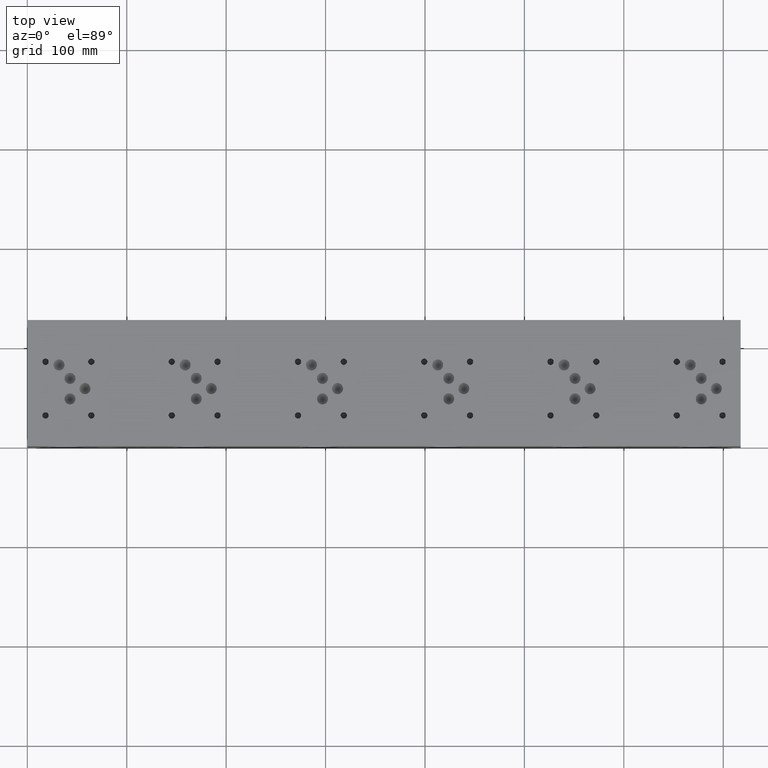
[diagram: clean part render]
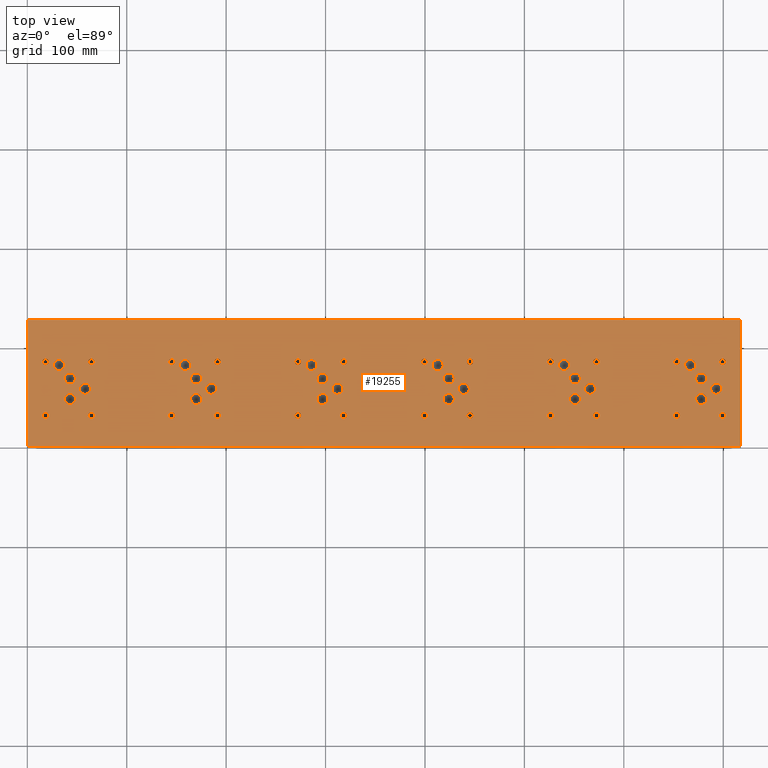
[diagram: same view with one face highlighted and labeled with its STEP entity id]
A machine part, top view. The second image highlights one B-rep face of the part: STEP entity #19255.
In plain terms, the highlighted planar face has unit normal (0, 0, 1).
Its self-contained STEP definition (entity closure, byte-faithful):
#660=CIRCLE('',#20266,5.55625);
#661=CIRCLE('',#20267,5.55625);
#664=CIRCLE('',#20272,5.55625);
#665=CIRCLE('',#20273,5.55625);
#668=CIRCLE('',#20278,5.5626);
#669=CIRCLE('',#20279,5.5626);
#672=CIRCLE('',#20284,5.5626);
#673=CIRCLE('',#20285,5.5626);
#676=CIRCLE('',#20290,5.5626);
#677=CIRCLE('',#20291,5.5626);
#680=CIRCLE('',#20296,5.5626);
#681=CIRCLE('',#20297,5.5626);
#684=CIRCLE('',#20302,5.5626);
#685=CIRCLE('',#20303,5.5626);
#688=CIRCLE('',#20308,5.5626);
#689=CIRCLE('',#20309,5.5626);
#692=CIRCLE('',#20314,5.5626);
#693=CIRCLE('',#20315,5.5626);
#696=CIRCLE('',#20320,5.5626);
#697=CIRCLE('',#20321,5.5626);
#700=CIRCLE('',#20326,5.5626);
#701=CIRCLE('',#20327,5.5626);
#704=CIRCLE('',#20332,5.5626);
#705=CIRCLE('',#20333,5.5626);
#708=CIRCLE('',#20338,5.5626);
#709=CIRCLE('',#20339,5.5626);
#712=CIRCLE('',#20344,5.5626);
#713=CIRCLE('',#20345,5.5626);
#716=CIRCLE('',#20350,5.5626);
#717=CIRCLE('',#20351,5.5626);
#720=CIRCLE('',#20356,5.5626);
#721=CIRCLE('',#20357,5.5626);
#724=CIRCLE('',#20362,5.5626);
#725=CIRCLE('',#20363,5.5626);
#728=CIRCLE('',#20368,5.5626);
#729=CIRCLE('',#20369,5.5626);
#732=CIRCLE('',#20374,5.5626);
#733=CIRCLE('',#20375,5.5626);
#736=CIRCLE('',#20380,5.5626);
#737=CIRCLE('',#20381,5.5626);
#740=CIRCLE('',#20386,5.5626);
#741=CIRCLE('',#20387,5.5626);
#744=CIRCLE('',#20392,5.5626);
#745=CIRCLE('',#20393,5.5626);
#748=CIRCLE('',#20398,5.5626);
#749=CIRCLE('',#20399,5.5626);
#752=CIRCLE('',#20404,5.5626);
#753=CIRCLE('',#20405,5.5626);
#759=CIRCLE('',#20414,3.175);
#760=CIRCLE('',#20415,3.175);
#766=CIRCLE('',#20425,3.175);
#767=CIRCLE('',#20426,3.175);
#773=CIRCLE('',#20436,3.175);
#774=CIRCLE('',#20437,3.175);
#780=CIRCLE('',#20447,3.175);
#781=CIRCLE('',#20448,3.175);
#787=CIRCLE('',#20458,3.175);
#788=CIRCLE('',#20459,3.175);
#794=CIRCLE('',#20469,3.175);
#795=CIRCLE('',#20470,3.175);
#801=CIRCLE('',#20480,3.175);
#802=CIRCLE('',#20481,3.175);
#808=CIRCLE('',#20491,3.175);
#809=CIRCLE('',#20492,3.175);
#815=CIRCLE('',#20502,3.175);
#816=CIRCLE('',#20503,3.175);
#822=CIRCLE('',#20513,3.175);
#823=CIRCLE('',#20514,3.175);
#829=CIRCLE('',#20524,3.175);
#830=CIRCLE('',#20525,3.175);
#836=CIRCLE('',#20535,3.175);
#837=CIRCLE('',#20536,3.175);
#843=CIRCLE('',#20546,3.175);
#844=CIRCLE('',#20547,3.175);
#850=CIRCLE('',#20557,3.175);
#851=CIRCLE('',#20558,3.175);
#857=CIRCLE('',#20568,3.175);
#858=CIRCLE('',#20569,3.175);
#864=CIRCLE('',#20579,3.175);
#865=CIRCLE('',#20580,3.175);
#871=CIRCLE('',#20590,3.175);
#872=CIRCLE('',#20591,3.175);
#878=CIRCLE('',#20601,3.175);
#879=CIRCLE('',#20602,3.175);
#885=CIRCLE('',#20612,3.175);
#886=CIRCLE('',#20613,3.175);
#892=CIRCLE('',#20623,3.175);
#893=CIRCLE('',#20624,3.175);
#899=CIRCLE('',#20634,3.175);
#900=CIRCLE('',#20635,3.175);
#906=CIRCLE('',#20645,3.175);
#907=CIRCLE('',#20646,3.175);
#913=CIRCLE('',#20656,3.175);
#914=CIRCLE('',#20657,3.175);
#920=CIRCLE('',#20667,3.175);
#921=CIRCLE('',#20668,3.175);
#1071=FACE_BOUND('',#3952,.T.);
#1072=FACE_BOUND('',#3953,.T.);
#1073=FACE_BOUND('',#3954,.T.);
#1074=FACE_BOUND('',#3955,.T.);
#1075=FACE_BOUND('',#3956,.T.);
#1076=FACE_BOUND('',#3957,.T.);
#1077=FACE_BOUND('',#3958,.T.);
#1078=FACE_BOUND('',#3959,.T.);
#1079=FACE_BOUND('',#3960,.T.);
#1080=FACE_BOUND('',#3961,.T.);
#1081=FACE_BOUND('',#3962,.T.);
#1082=FACE_BOUND('',#3963,.T.);
#1083=FACE_BOUND('',#3964,.T.);
#1084=FACE_BOUND('',#3965,.T.);
#1085=FACE_BOUND('',#3966,.T.);
#1086=FACE_BOUND('',#3967,.T.);
#1087=FACE_BOUND('',#3968,.T.);
#1088=FACE_BOUND('',#3969,.T.);
#1089=FACE_BOUND('',#3970,.T.);
#1090=FACE_BOUND('',#3971,.T.);
#1091=FACE_BOUND('',#3972,.T.);
#1092=FACE_BOUND('',#3973,.T.);
#1093=FACE_BOUND('',#3974,.T.);
#1094=FACE_BOUND('',#3975,.T.);
#1095=FACE_BOUND('',#3976,.T.);
#1096=FACE_BOUND('',#3977,.T.);
#1097=FACE_BOUND('',#3978,.T.);
#1098=FACE_BOUND('',#3979,.T.);
#1099=FACE_BOUND('',#3980,.T.);
#1100=FACE_BOUND('',#3981,.T.);
#1101=FACE_BOUND('',#3982,.T.);
#1102=FACE_BOUND('',#3983,.T.);
#1103=FACE_BOUND('',#3984,.T.);
#1104=FACE_BOUND('',#3985,.T.);
#1105=FACE_BOUND('',#3986,.T.);
#1106=FACE_BOUND('',#3987,.T.);
#1107=FACE_BOUND('',#3988,.T.);
#1108=FACE_BOUND('',#3989,.T.);
#1109=FACE_BOUND('',#3990,.T.);
#1110=FACE_BOUND('',#3991,.T.);
#1111=FACE_BOUND('',#3992,.T.);
#1112=FACE_BOUND('',#3993,.T.);
#1113=FACE_BOUND('',#3994,.T.);
#1114=FACE_BOUND('',#3995,.T.);
#1115=FACE_BOUND('',#3996,.T.);
#1116=FACE_BOUND('',#3997,.T.);
#1117=FACE_BOUND('',#3998,.T.);
#1118=FACE_BOUND('',#3999,.T.);
#2794=FACE_OUTER_BOUND('',#3951,.T.);
#3951=EDGE_LOOP('',(#17024,#17025,#17026,#17027));
#3952=EDGE_LOOP('',(#17028,#17029));
#3953=EDGE_LOOP('',(#17030,#17031));
#3954=EDGE_LOOP('',(#17032,#17033));
#3955=EDGE_LOOP('',(#17034,#17035));
#3956=EDGE_LOOP('',(#17036,#17037));
#3957=EDGE_LOOP('',(#17038,#17039));
#3958=EDGE_LOOP('',(#17040,#17041));
#3959=EDGE_LOOP('',(#17042,#17043));
#3960=EDGE_LOOP('',(#17044,#17045));
#3961=EDGE_LOOP('',(#17046,#17047));
#3962=EDGE_LOOP('',(#17048,#17049));
#3963=EDGE_LOOP('',(#17050,#17051));
#3964=EDGE_LOOP('',(#17052,#17053));
#3965=EDGE_LOOP('',(#17054,#17055));
#3966=EDGE_LOOP('',(#17056,#17057));
#3967=EDGE_LOOP('',(#17058,#17059));
#3968=EDGE_LOOP('',(#17060,#17061));
#3969=EDGE_LOOP('',(#17062,#17063));
#3970=EDGE_LOOP('',(#17064,#17065));
#3971=EDGE_LOOP('',(#17066,#17067));
#3972=EDGE_LOOP('',(#17068,#17069));
#3973=EDGE_LOOP('',(#17070,#17071));
#3974=EDGE_LOOP('',(#17072,#17073));
#3975=EDGE_LOOP('',(#17074,#17075));
#3976=EDGE_LOOP('',(#17076,#17077));
#3977=EDGE_LOOP('',(#17078,#17079));
#3978=EDGE_LOOP('',(#17080,#17081));
#3979=EDGE_LOOP('',(#17082,#17083));
#3980=EDGE_LOOP('',(#17084,#17085));
#3981=EDGE_LOOP('',(#17086,#17087));
#3982=EDGE_LOOP('',(#17088,#17089));
#3983=EDGE_LOOP('',(#17090,#17091));
#3984=EDGE_LOOP('',(#17092,#17093));
#3985=EDGE_LOOP('',(#17094,#17095));
#3986=EDGE_LOOP('',(#17096,#17097));
#3987=EDGE_LOOP('',(#17098,#17099));
#3988=EDGE_LOOP('',(#17100,#17101));
#3989=EDGE_LOOP('',(#17102,#17103));
#3990=EDGE_LOOP('',(#17104,#17105));
#3991=EDGE_LOOP('',(#17106,#17107));
#3992=EDGE_LOOP('',(#17108,#17109));
#3993=EDGE_LOOP('',(#17110,#17111));
#3994=EDGE_LOOP('',(#17112,#17113));
#3995=EDGE_LOOP('',(#17114,#17115));
#3996=EDGE_LOOP('',(#17116,#17117));
#3997=EDGE_LOOP('',(#17118,#17119));
#3998=EDGE_LOOP('',(#17120,#17121));
#3999=EDGE_LOOP('',(#17122,#17123));
#4059=LINE('',#25358,#5671);
#4119=LINE('',#25633,#5731);
#4415=LINE('',#27966,#6027);
#5612=LINE('',#33550,#7224);
#5671=VECTOR('',#20774,10.);
#5731=VECTOR('',#20888,10.);
#6027=VECTOR('',#21350,10.);
#7224=VECTOR('',#25091,10.);
#7275=VERTEX_POINT('',#25355);
#7276=VERTEX_POINT('',#25357);
#7335=VERTEX_POINT('',#25630);
#7336=VERTEX_POINT('',#25632);
#8785=VERTEX_POINT('',#32715);
#8786=VERTEX_POINT('',#32716);
#8790=VERTEX_POINT('',#32728);
#8791=VERTEX_POINT('',#32729);
#8795=VERTEX_POINT('',#32741);
#8796=VERTEX_POINT('',#32742);
#8800=VERTEX_POINT('',#32754);
#8801=VERTEX_POINT('',#32755);
#8805=VERTEX_POINT('',#32767);
#8806=VERTEX_POINT('',#32768);
#8810=VERTEX_POINT('',#32780);
#8811=VERTEX_POINT('',#32781);
#8815=VERTEX_POINT('',#32793);
#8816=VERTEX_POINT('',#32794);
#8820=VERTEX_POINT('',#32806);
#8821=VERTEX_POINT('',#32807);
#8825=VERTEX_POINT('',#32819);
#8826=VERTEX_POINT('',#32820);
#8830=VERTEX_POINT('',#32832);
#8831=VERTEX_POINT('',#32833);
#8835=VERTEX_POINT('',#32845);
#8836=VERTEX_POINT('',#32846);
#8840=VERTEX_POINT('',#32858);
#8841=VERTEX_POINT('',#32859);
#8845=VERTEX_POINT('',#32871);
#8846=VERTEX_POINT('',#32872);
#8850=VERTEX_POINT('',#32884);
#8851=VERTEX_POINT('',#32885);
#8855=VERTEX_POINT('',#32897);
#8856=VERTEX_POINT('',#32898);
#8860=VERTEX_POINT('',#32910);
#8861=VERTEX_POINT('',#32911);
#8865=VERTEX_POINT('',#32923);
#8866=VERTEX_POINT('',#32924);
#8870=VERTEX_POINT('',#32936);
#8871=VERTEX_POINT('',#32937);
#8875=VERTEX_POINT('',#32949);
#8876=VERTEX_POINT('',#32950);
#8880=VERTEX_POINT('',#32962);
#8881=VERTEX_POINT('',#32963);
#8885=VERTEX_POINT('',#32975);
#8886=VERTEX_POINT('',#32976);
#8890=VERTEX_POINT('',#32988);
#8891=VERTEX_POINT('',#32989);
#8895=VERTEX_POINT('',#33001);
#8896=VERTEX_POINT('',#33002);
#8900=VERTEX_POINT('',#33014);
#8901=VERTEX_POINT('',#33015);
#8908=VERTEX_POINT('',#33034);
#8909=VERTEX_POINT('',#33035);
#8916=VERTEX_POINT('',#33056);
#8917=VERTEX_POINT('',#33057);
#8924=VERTEX_POINT('',#33078);
#8925=VERTEX_POINT('',#33079);
#8932=VERTEX_POINT('',#33100);
#8933=VERTEX_POINT('',#33101);
#8940=VERTEX_POINT('',#33122);
#8941=VERTEX_POINT('',#33123);
#8948=VERTEX_POINT('',#33144);
#8949=VERTEX_POINT('',#33145);
#8956=VERTEX_POINT('',#33166);
#8957=VERTEX_POINT('',#33167);
#8964=VERTEX_POINT('',#33188);
#8965=VERTEX_POINT('',#33189);
#8972=VERTEX_POINT('',#33210);
#8973=VERTEX_POINT('',#33211);
#8980=VERTEX_POINT('',#33232);
#8981=VERTEX_POINT('',#33233);
#8988=VERTEX_POINT('',#33254);
#8989=VERTEX_POINT('',#33255);
#8996=VERTEX_POINT('',#33276);
#8997=VERTEX_POINT('',#33277);
#9004=VERTEX_POINT('',#33298);
#9005=VERTEX_POINT('',#33299);
#9012=VERTEX_POINT('',#33320);
#9013=VERTEX_POINT('',#33321);
#9020=VERTEX_POINT('',#33342);
#9021=VERTEX_POINT('',#33343);
#9028=VERTEX_POINT('',#33364);
#9029=VERTEX_POINT('',#33365);
#9036=VERTEX_POINT('',#33386);
#9037=VERTEX_POINT('',#33387);
#9044=VERTEX_POINT('',#33408);
#9045=VERTEX_POINT('',#33409);
#9052=VERTEX_POINT('',#33430);
#9053=VERTEX_POINT('',#33431);
#9060=VERTEX_POINT('',#33452);
#9061=VERTEX_POINT('',#33453);
#9068=VERTEX_POINT('',#33474);
#9069=VERTEX_POINT('',#33475);
#9076=VERTEX_POINT('',#33496);
#9077=VERTEX_POINT('',#33497);
#9084=VERTEX_POINT('',#33518);
#9085=VERTEX_POINT('',#33519);
#9092=VERTEX_POINT('',#33540);
#9093=VERTEX_POINT('',#33541);
#9168=EDGE_CURVE('',#7276,#7275,#4059,.T.);
#9252=EDGE_CURVE('',#7336,#7335,#4119,.T.);
#9758=EDGE_CURVE('',#7335,#7276,#4415,.T.);
#11389=EDGE_CURVE('',#8785,#8786,#660,.T.);
#11390=EDGE_CURVE('',#8786,#8785,#661,.T.);
#11395=EDGE_CURVE('',#8790,#8791,#664,.T.);
#11396=EDGE_CURVE('',#8791,#8790,#665,.T.);
#11401=EDGE_CURVE('',#8795,#8796,#668,.T.);
#11402=EDGE_CURVE('',#8796,#8795,#669,.T.);
#11407=EDGE_CURVE('',#8800,#8801,#672,.T.);
#11408=EDGE_CURVE('',#8801,#8800,#673,.T.);
#11413=EDGE_CURVE('',#8805,#8806,#676,.T.);
#11414=EDGE_CURVE('',#8806,#8805,#677,.T.);
#11419=EDGE_CURVE('',#8810,#8811,#680,.T.);
#11420=EDGE_CURVE('',#8811,#8810,#681,.T.);
#11425=EDGE_CURVE('',#8815,#8816,#684,.T.);
#11426=EDGE_CURVE('',#8816,#8815,#685,.T.);
#11431=EDGE_CURVE('',#8820,#8821,#688,.T.);
#11432=EDGE_CURVE('',#8821,#8820,#689,.T.);
#11437=EDGE_CURVE('',#8825,#8826,#692,.T.);
#11438=EDGE_CURVE('',#8826,#8825,#693,.T.);
#11443=EDGE_CURVE('',#8830,#8831,#696,.T.);
#11444=EDGE_CURVE('',#8831,#8830,#697,.T.);
#11449=EDGE_CURVE('',#8835,#8836,#700,.T.);
#11450=EDGE_CURVE('',#8836,#8835,#701,.T.);
#11455=EDGE_CURVE('',#8840,#8841,#704,.T.);
#11456=EDGE_CURVE('',#8841,#8840,#705,.T.);
#11461=EDGE_CURVE('',#8845,#8846,#708,.T.);
#11462=EDGE_CURVE('',#8846,#8845,#709,.T.);
#11467=EDGE_CURVE('',#8850,#8851,#712,.T.);
#11468=EDGE_CURVE('',#8851,#8850,#713,.T.);
#11473=EDGE_CURVE('',#8855,#8856,#716,.T.);
#11474=EDGE_CURVE('',#8856,#8855,#717,.T.);
#11479=EDGE_CURVE('',#8860,#8861,#720,.T.);
#11480=EDGE_CURVE('',#8861,#8860,#721,.T.);
#11485=EDGE_CURVE('',#8865,#8866,#724,.T.);
#11486=EDGE_CURVE('',#8866,#8865,#725,.T.);
#11491=EDGE_CURVE('',#8870,#8871,#728,.T.);
#11492=EDGE_CURVE('',#8871,#8870,#729,.T.);
#11497=EDGE_CURVE('',#8875,#8876,#732,.T.);
#11498=EDGE_CURVE('',#8876,#8875,#733,.T.);
#11503=EDGE_CURVE('',#8880,#8881,#736,.T.);
#11504=EDGE_CURVE('',#8881,#8880,#737,.T.);
#11509=EDGE_CURVE('',#8885,#8886,#740,.T.);
#11510=EDGE_CURVE('',#8886,#8885,#741,.T.);
#11515=EDGE_CURVE('',#8890,#8891,#744,.T.);
#11516=EDGE_CURVE('',#8891,#8890,#745,.T.);
#11521=EDGE_CURVE('',#8895,#8896,#748,.T.);
#11522=EDGE_CURVE('',#8896,#8895,#749,.T.);
#11527=EDGE_CURVE('',#8900,#8901,#752,.T.);
#11528=EDGE_CURVE('',#8901,#8900,#753,.T.);
#11536=EDGE_CURVE('',#8908,#8909,#759,.T.);
#11537=EDGE_CURVE('',#8909,#8908,#760,.T.);
#11546=EDGE_CURVE('',#8916,#8917,#766,.T.);
#11547=EDGE_CURVE('',#8917,#8916,#767,.T.);
#11556=EDGE_CURVE('',#8924,#8925,#773,.T.);
#11557=EDGE_CURVE('',#8925,#8924,#774,.T.);
#11566=EDGE_CURVE('',#8932,#8933,#780,.T.);
#11567=EDGE_CURVE('',#8933,#8932,#781,.T.);
#11576=EDGE_CURVE('',#8940,#8941,#787,.T.);
#11577=EDGE_CURVE('',#8941,#8940,#788,.T.);
#11586=EDGE_CURVE('',#8948,#8949,#794,.T.);
#11587=EDGE_CURVE('',#8949,#8948,#795,.T.);
#11596=EDGE_CURVE('',#8956,#8957,#801,.T.);
#11597=EDGE_CURVE('',#8957,#8956,#802,.T.);
#11606=EDGE_CURVE('',#8964,#8965,#808,.T.);
#11607=EDGE_CURVE('',#8965,#8964,#809,.T.);
#11616=EDGE_CURVE('',#8972,#8973,#815,.T.);
#11617=EDGE_CURVE('',#8973,#8972,#816,.T.);
#11626=EDGE_CURVE('',#8980,#8981,#822,.T.);
#11627=EDGE_CURVE('',#8981,#8980,#823,.T.);
#11636=EDGE_CURVE('',#8988,#8989,#829,.T.);
#11637=EDGE_CURVE('',#8989,#8988,#830,.T.);
#11646=EDGE_CURVE('',#8996,#8997,#836,.T.);
#11647=EDGE_CURVE('',#8997,#8996,#837,.T.);
#11656=EDGE_CURVE('',#9004,#9005,#843,.T.);
#11657=EDGE_CURVE('',#9005,#9004,#844,.T.);
#11666=EDGE_CURVE('',#9012,#9013,#850,.T.);
#11667=EDGE_CURVE('',#9013,#9012,#851,.T.);
#11676=EDGE_CURVE('',#9020,#9021,#857,.T.);
#11677=EDGE_CURVE('',#9021,#9020,#858,.T.);
#11686=EDGE_CURVE('',#9028,#9029,#864,.T.);
#11687=EDGE_CURVE('',#9029,#9028,#865,.T.);
#11696=EDGE_CURVE('',#9036,#9037,#871,.T.);
#11697=EDGE_CURVE('',#9037,#9036,#872,.T.);
#11706=EDGE_CURVE('',#9044,#9045,#878,.T.);
#11707=EDGE_CURVE('',#9045,#9044,#879,.T.);
#11716=EDGE_CURVE('',#9052,#9053,#885,.T.);
#11717=EDGE_CURVE('',#9053,#9052,#886,.T.);
#11726=EDGE_CURVE('',#9060,#9061,#892,.T.);
#11727=EDGE_CURVE('',#9061,#9060,#893,.T.);
#11736=EDGE_CURVE('',#9068,#9069,#899,.T.);
#11737=EDGE_CURVE('',#9069,#9068,#900,.T.);
#11746=EDGE_CURVE('',#9076,#9077,#906,.T.);
#11747=EDGE_CURVE('',#9077,#9076,#907,.T.);
#11756=EDGE_CURVE('',#9084,#9085,#913,.T.);
#11757=EDGE_CURVE('',#9085,#9084,#914,.T.);
#11766=EDGE_CURVE('',#9092,#9093,#920,.T.);
#11767=EDGE_CURVE('',#9093,#9092,#921,.T.);
#11771=EDGE_CURVE('',#7275,#7336,#5612,.T.);
#17024=ORIENTED_EDGE('',*,*,#9758,.T.);
#17025=ORIENTED_EDGE('',*,*,#9168,.T.);
#17026=ORIENTED_EDGE('',*,*,#11771,.T.);
#17027=ORIENTED_EDGE('',*,*,#9252,.T.);
#17028=ORIENTED_EDGE('',*,*,#11389,.T.);
#17029=ORIENTED_EDGE('',*,*,#11390,.T.);
#17030=ORIENTED_EDGE('',*,*,#11395,.T.);
#17031=ORIENTED_EDGE('',*,*,#11396,.T.);
#17032=ORIENTED_EDGE('',*,*,#11401,.T.);
#17033=ORIENTED_EDGE('',*,*,#11402,.T.);
#17034=ORIENTED_EDGE('',*,*,#11407,.T.);
#17035=ORIENTED_EDGE('',*,*,#11408,.T.);
#17036=ORIENTED_EDGE('',*,*,#11413,.T.);
#17037=ORIENTED_EDGE('',*,*,#11414,.T.);
#17038=ORIENTED_EDGE('',*,*,#11419,.T.);
#17039=ORIENTED_EDGE('',*,*,#11420,.T.);
#17040=ORIENTED_EDGE('',*,*,#11425,.T.);
#17041=ORIENTED_EDGE('',*,*,#11426,.T.);
#17042=ORIENTED_EDGE('',*,*,#11431,.T.);
#17043=ORIENTED_EDGE('',*,*,#11432,.T.);
#17044=ORIENTED_EDGE('',*,*,#11437,.T.);
#17045=ORIENTED_EDGE('',*,*,#11438,.T.);
#17046=ORIENTED_EDGE('',*,*,#11443,.T.);
#17047=ORIENTED_EDGE('',*,*,#11444,.T.);
#17048=ORIENTED_EDGE('',*,*,#11449,.T.);
#17049=ORIENTED_EDGE('',*,*,#11450,.T.);
#17050=ORIENTED_EDGE('',*,*,#11455,.T.);
#17051=ORIENTED_EDGE('',*,*,#11456,.T.);
#17052=ORIENTED_EDGE('',*,*,#11461,.T.);
#17053=ORIENTED_EDGE('',*,*,#11462,.T.);
#17054=ORIENTED_EDGE('',*,*,#11467,.T.);
#17055=ORIENTED_EDGE('',*,*,#11468,.T.);
#17056=ORIENTED_EDGE('',*,*,#11473,.T.);
#17057=ORIENTED_EDGE('',*,*,#11474,.T.);
#17058=ORIENTED_EDGE('',*,*,#11479,.T.);
#17059=ORIENTED_EDGE('',*,*,#11480,.T.);
#17060=ORIENTED_EDGE('',*,*,#11485,.T.);
#17061=ORIENTED_EDGE('',*,*,#11486,.T.);
#17062=ORIENTED_EDGE('',*,*,#11491,.T.);
#17063=ORIENTED_EDGE('',*,*,#11492,.T.);
#17064=ORIENTED_EDGE('',*,*,#11497,.T.);
#17065=ORIENTED_EDGE('',*,*,#11498,.T.);
#17066=ORIENTED_EDGE('',*,*,#11503,.T.);
#17067=ORIENTED_EDGE('',*,*,#11504,.T.);
#17068=ORIENTED_EDGE('',*,*,#11509,.T.);
#17069=ORIENTED_EDGE('',*,*,#11510,.T.);
#17070=ORIENTED_EDGE('',*,*,#11515,.T.);
#17071=ORIENTED_EDGE('',*,*,#11516,.T.);
#17072=ORIENTED_EDGE('',*,*,#11521,.T.);
#17073=ORIENTED_EDGE('',*,*,#11522,.T.);
#17074=ORIENTED_EDGE('',*,*,#11527,.T.);
#17075=ORIENTED_EDGE('',*,*,#11528,.T.);
#17076=ORIENTED_EDGE('',*,*,#11536,.T.);
#17077=ORIENTED_EDGE('',*,*,#11537,.T.);
#17078=ORIENTED_EDGE('',*,*,#11546,.T.);
#17079=ORIENTED_EDGE('',*,*,#11547,.T.);
#17080=ORIENTED_EDGE('',*,*,#11556,.T.);
#17081=ORIENTED_EDGE('',*,*,#11557,.T.);
#17082=ORIENTED_EDGE('',*,*,#11566,.T.);
#17083=ORIENTED_EDGE('',*,*,#11567,.T.);
#17084=ORIENTED_EDGE('',*,*,#11576,.T.);
#17085=ORIENTED_EDGE('',*,*,#11577,.T.);
#17086=ORIENTED_EDGE('',*,*,#11586,.T.);
#17087=ORIENTED_EDGE('',*,*,#11587,.T.);
#17088=ORIENTED_EDGE('',*,*,#11596,.T.);
#17089=ORIENTED_EDGE('',*,*,#11597,.T.);
#17090=ORIENTED_EDGE('',*,*,#11606,.T.);
#17091=ORIENTED_EDGE('',*,*,#11607,.T.);
#17092=ORIENTED_EDGE('',*,*,#11616,.T.);
#17093=ORIENTED_EDGE('',*,*,#11617,.T.);
#17094=ORIENTED_EDGE('',*,*,#11626,.T.);
#17095=ORIENTED_EDGE('',*,*,#11627,.T.);
#17096=ORIENTED_EDGE('',*,*,#11636,.T.);
#17097=ORIENTED_EDGE('',*,*,#11637,.T.);
#17098=ORIENTED_EDGE('',*,*,#11646,.T.);
#17099=ORIENTED_EDGE('',*,*,#11647,.T.);
#17100=ORIENTED_EDGE('',*,*,#11656,.T.);
#17101=ORIENTED_EDGE('',*,*,#11657,.T.);
#17102=ORIENTED_EDGE('',*,*,#11666,.T.);
#17103=ORIENTED_EDGE('',*,*,#11667,.T.);
#17104=ORIENTED_EDGE('',*,*,#11676,.T.);
#17105=ORIENTED_EDGE('',*,*,#11677,.T.);
#17106=ORIENTED_EDGE('',*,*,#11686,.T.);
#17107=ORIENTED_EDGE('',*,*,#11687,.T.);
#17108=ORIENTED_EDGE('',*,*,#11696,.T.);
#17109=ORIENTED_EDGE('',*,*,#11697,.T.);
#17110=ORIENTED_EDGE('',*,*,#11706,.T.);
#17111=ORIENTED_EDGE('',*,*,#11707,.T.);
#17112=ORIENTED_EDGE('',*,*,#11716,.T.);
#17113=ORIENTED_EDGE('',*,*,#11717,.T.);
#17114=ORIENTED_EDGE('',*,*,#11726,.T.);
#17115=ORIENTED_EDGE('',*,*,#11727,.T.);
#17116=ORIENTED_EDGE('',*,*,#11736,.T.);
#17117=ORIENTED_EDGE('',*,*,#11737,.T.);
#17118=ORIENTED_EDGE('',*,*,#11746,.T.);
#17119=ORIENTED_EDGE('',*,*,#11747,.T.);
#17120=ORIENTED_EDGE('',*,*,#11756,.T.);
#17121=ORIENTED_EDGE('',*,*,#11757,.T.);
#17122=ORIENTED_EDGE('',*,*,#11766,.T.);
#17123=ORIENTED_EDGE('',*,*,#11767,.T.);
#17623=PLANE('',#20674);
#19255=ADVANCED_FACE('',(#2794,#1071,#1072,#1073,#1074,#1075,#1076,#1077,
#1078,#1079,#1080,#1081,#1082,#1083,#1084,#1085,#1086,#1087,#1088,#1089,
#1090,#1091,#1092,#1093,#1094,#1095,#1096,#1097,#1098,#1099,#1100,#1101,
#1102,#1103,#1104,#1105,#1106,#1107,#1108,#1109,#1110,#1111,#1112,#1113,
#1114,#1115,#1116,#1117,#1118),#17623,.T.);
#20266=AXIS2_PLACEMENT_3D('',#32717,#24159,#24160);
#20267=AXIS2_PLACEMENT_3D('',#32718,#24161,#24162);
#20272=AXIS2_PLACEMENT_3D('',#32730,#24173,#24174);
#20273=AXIS2_PLACEMENT_3D('',#32731,#24175,#24176);
#20278=AXIS2_PLACEMENT_3D('',#32743,#24187,#24188);
#20279=AXIS2_PLACEMENT_3D('',#32744,#24189,#24190);
#20284=AXIS2_PLACEMENT_3D('',#32756,#24201,#24202);
#20285=AXIS2_PLACEMENT_3D('',#32757,#24203,#24204);
#20290=AXIS2_PLACEMENT_3D('',#32769,#24215,#24216);
#20291=AXIS2_PLACEMENT_3D('',#32770,#24217,#24218);
#20296=AXIS2_PLACEMENT_3D('',#32782,#24229,#24230);
#20297=AXIS2_PLACEMENT_3D('',#32783,#24231,#24232);
#20302=AXIS2_PLACEMENT_3D('',#32795,#24243,#24244);
#20303=AXIS2_PLACEMENT_3D('',#32796,#24245,#24246);
#20308=AXIS2_PLACEMENT_3D('',#32808,#24257,#24258);
#20309=AXIS2_PLACEMENT_3D('',#32809,#24259,#24260);
#20314=AXIS2_PLACEMENT_3D('',#32821,#24271,#24272);
#20315=AXIS2_PLACEMENT_3D('',#32822,#24273,#24274);
#20320=AXIS2_PLACEMENT_3D('',#32834,#24285,#24286);
#20321=AXIS2_PLACEMENT_3D('',#32835,#24287,#24288);
#20326=AXIS2_PLACEMENT_3D('',#32847,#24299,#24300);
#20327=AXIS2_PLACEMENT_3D('',#32848,#24301,#24302);
#20332=AXIS2_PLACEMENT_3D('',#32860,#24313,#24314);
#20333=AXIS2_PLACEMENT_3D('',#32861,#24315,#24316);
#20338=AXIS2_PLACEMENT_3D('',#32873,#24327,#24328);
#20339=AXIS2_PLACEMENT_3D('',#32874,#24329,#24330);
#20344=AXIS2_PLACEMENT_3D('',#32886,#24341,#24342);
#20345=AXIS2_PLACEMENT_3D('',#32887,#24343,#24344);
#20350=AXIS2_PLACEMENT_3D('',#32899,#24355,#24356);
#20351=AXIS2_PLACEMENT_3D('',#32900,#24357,#24358);
#20356=AXIS2_PLACEMENT_3D('',#32912,#24369,#24370);
#20357=AXIS2_PLACEMENT_3D('',#32913,#24371,#24372);
#20362=AXIS2_PLACEMENT_3D('',#32925,#24383,#24384);
#20363=AXIS2_PLACEMENT_3D('',#32926,#24385,#24386);
#20368=AXIS2_PLACEMENT_3D('',#32938,#24397,#24398);
#20369=AXIS2_PLACEMENT_3D('',#32939,#24399,#24400);
#20374=AXIS2_PLACEMENT_3D('',#32951,#24411,#24412);
#20375=AXIS2_PLACEMENT_3D('',#32952,#24413,#24414);
#20380=AXIS2_PLACEMENT_3D('',#32964,#24425,#24426);
#20381=AXIS2_PLACEMENT_3D('',#32965,#24427,#24428);
#20386=AXIS2_PLACEMENT_3D('',#32977,#24439,#24440);
#20387=AXIS2_PLACEMENT_3D('',#32978,#24441,#24442);
#20392=AXIS2_PLACEMENT_3D('',#32990,#24453,#24454);
#20393=AXIS2_PLACEMENT_3D('',#32991,#24455,#24456);
#20398=AXIS2_PLACEMENT_3D('',#33003,#24467,#24468);
#20399=AXIS2_PLACEMENT_3D('',#33004,#24469,#24470);
#20404=AXIS2_PLACEMENT_3D('',#33016,#24481,#24482);
#20405=AXIS2_PLACEMENT_3D('',#33017,#24483,#24484);
#20414=AXIS2_PLACEMENT_3D('',#33036,#24503,#24504);
#20415=AXIS2_PLACEMENT_3D('',#33037,#24505,#24506);
#20425=AXIS2_PLACEMENT_3D('',#33058,#24528,#24529);
#20426=AXIS2_PLACEMENT_3D('',#33059,#24530,#24531);
#20436=AXIS2_PLACEMENT_3D('',#33080,#24553,#24554);
#20437=AXIS2_PLACEMENT_3D('',#33081,#24555,#24556);
#20447=AXIS2_PLACEMENT_3D('',#33102,#24578,#24579);
#20448=AXIS2_PLACEMENT_3D('',#33103,#24580,#24581);
#20458=AXIS2_PLACEMENT_3D('',#33124,#24603,#24604);
#20459=AXIS2_PLACEMENT_3D('',#33125,#24605,#24606);
#20469=AXIS2_PLACEMENT_3D('',#33146,#24628,#24629);
#20470=AXIS2_PLACEMENT_3D('',#33147,#24630,#24631);
#20480=AXIS2_PLACEMENT_3D('',#33168,#24653,#24654);
#20481=AXIS2_PLACEMENT_3D('',#33169,#24655,#24656);
#20491=AXIS2_PLACEMENT_3D('',#33190,#24678,#24679);
#20492=AXIS2_PLACEMENT_3D('',#33191,#24680,#24681);
#20502=AXIS2_PLACEMENT_3D('',#33212,#24703,#24704);
#20503=AXIS2_PLACEMENT_3D('',#33213,#24705,#24706);
#20513=AXIS2_PLACEMENT_3D('',#33234,#24728,#24729);
#20514=AXIS2_PLACEMENT_3D('',#33235,#24730,#24731);
#20524=AXIS2_PLACEMENT_3D('',#33256,#24753,#24754);
#20525=AXIS2_PLACEMENT_3D('',#33257,#24755,#24756);
#20535=AXIS2_PLACEMENT_3D('',#33278,#24778,#24779);
#20536=AXIS2_PLACEMENT_3D('',#33279,#24780,#24781);
#20546=AXIS2_PLACEMENT_3D('',#33300,#24803,#24804);
#20547=AXIS2_PLACEMENT_3D('',#33301,#24805,#24806);
#20557=AXIS2_PLACEMENT_3D('',#33322,#24828,#24829);
#20558=AXIS2_PLACEMENT_3D('',#33323,#24830,#24831);
#20568=AXIS2_PLACEMENT_3D('',#33344,#24853,#24854);
#20569=AXIS2_PLACEMENT_3D('',#33345,#24855,#24856);
#20579=AXIS2_PLACEMENT_3D('',#33366,#24878,#24879);
#20580=AXIS2_PLACEMENT_3D('',#33367,#24880,#24881);
#20590=AXIS2_PLACEMENT_3D('',#33388,#24903,#24904);
#20591=AXIS2_PLACEMENT_3D('',#33389,#24905,#24906);
#20601=AXIS2_PLACEMENT_3D('',#33410,#24928,#24929);
#20602=AXIS2_PLACEMENT_3D('',#33411,#24930,#24931);
#20612=AXIS2_PLACEMENT_3D('',#33432,#24953,#24954);
#20613=AXIS2_PLACEMENT_3D('',#33433,#24955,#24956);
#20623=AXIS2_PLACEMENT_3D('',#33454,#24978,#24979);
#20624=AXIS2_PLACEMENT_3D('',#33455,#24980,#24981);
#20634=AXIS2_PLACEMENT_3D('',#33476,#25003,#25004);
#20635=AXIS2_PLACEMENT_3D('',#33477,#25005,#25006);
#20645=AXIS2_PLACEMENT_3D('',#33498,#25028,#25029);
#20646=AXIS2_PLACEMENT_3D('',#33499,#25030,#25031);
#20656=AXIS2_PLACEMENT_3D('',#33520,#25053,#25054);
#20657=AXIS2_PLACEMENT_3D('',#33521,#25055,#25056);
#20667=AXIS2_PLACEMENT_3D('',#33542,#25078,#25079);
#20668=AXIS2_PLACEMENT_3D('',#33543,#25080,#25081);
#20674=AXIS2_PLACEMENT_3D('',#33553,#25096,#25097);
#20774=DIRECTION('',(0.,1.,0.));
#20888=DIRECTION('',(0.,-1.,0.));
#21350=DIRECTION('',(1.,0.,0.));
#24159=DIRECTION('center_axis',(0.,0.,-1.));
#24160=DIRECTION('ref_axis',(1.,0.,0.));
#24161=DIRECTION('center_axis',(0.,0.,-1.));
#24162=DIRECTION('ref_axis',(1.,0.,0.));
#24173=DIRECTION('center_axis',(0.,0.,-1.));
#24174=DIRECTION('ref_axis',(1.,0.,0.));
#24175=DIRECTION('center_axis',(0.,0.,-1.));
#24176=DIRECTION('ref_axis',(1.,0.,0.));
#24187=DIRECTION('center_axis',(0.,0.,-1.));
#24188=DIRECTION('ref_axis',(1.,0.,0.));
#24189=DIRECTION('center_axis',(0.,0.,-1.));
#24190=DIRECTION('ref_axis',(1.,0.,0.));
#24201=DIRECTION('center_axis',(0.,0.,-1.));
#24202=DIRECTION('ref_axis',(1.,0.,0.));
#24203=DIRECTION('center_axis',(0.,0.,-1.));
#24204=DIRECTION('ref_axis',(1.,0.,0.));
#24215=DIRECTION('center_axis',(0.,0.,-1.));
#24216=DIRECTION('ref_axis',(1.,0.,0.));
#24217=DIRECTION('center_axis',(0.,0.,-1.));
#24218=DIRECTION('ref_axis',(1.,0.,0.));
#24229=DIRECTION('center_axis',(0.,0.,-1.));
#24230=DIRECTION('ref_axis',(1.,0.,0.));
#24231=DIRECTION('center_axis',(0.,0.,-1.));
#24232=DIRECTION('ref_axis',(1.,0.,0.));
#24243=DIRECTION('center_axis',(0.,0.,-1.));
#24244=DIRECTION('ref_axis',(1.,0.,0.));
#24245=DIRECTION('center_axis',(0.,0.,-1.));
#24246=DIRECTION('ref_axis',(1.,0.,0.));
#24257=DIRECTION('center_axis',(0.,0.,-1.));
#24258=DIRECTION('ref_axis',(1.,0.,0.));
#24259=DIRECTION('center_axis',(0.,0.,-1.));
#24260=DIRECTION('ref_axis',(1.,0.,0.));
#24271=DIRECTION('center_axis',(0.,0.,-1.));
#24272=DIRECTION('ref_axis',(1.,0.,0.));
#24273=DIRECTION('center_axis',(0.,0.,-1.));
#24274=DIRECTION('ref_axis',(1.,0.,0.));
#24285=DIRECTION('center_axis',(0.,0.,-1.));
#24286=DIRECTION('ref_axis',(1.,0.,0.));
#24287=DIRECTION('center_axis',(0.,0.,-1.));
#24288=DIRECTION('ref_axis',(1.,0.,0.));
#24299=DIRECTION('center_axis',(0.,0.,-1.));
#24300=DIRECTION('ref_axis',(1.,0.,0.));
#24301=DIRECTION('center_axis',(0.,0.,-1.));
#24302=DIRECTION('ref_axis',(1.,0.,0.));
#24313=DIRECTION('center_axis',(0.,0.,-1.));
#24314=DIRECTION('ref_axis',(1.,0.,0.));
#24315=DIRECTION('center_axis',(0.,0.,-1.));
#24316=DIRECTION('ref_axis',(1.,0.,0.));
#24327=DIRECTION('center_axis',(0.,0.,-1.));
#24328=DIRECTION('ref_axis',(1.,0.,0.));
#24329=DIRECTION('center_axis',(0.,0.,-1.));
#24330=DIRECTION('ref_axis',(1.,0.,0.));
#24341=DIRECTION('center_axis',(0.,0.,-1.));
#24342=DIRECTION('ref_axis',(1.,0.,0.));
#24343=DIRECTION('center_axis',(0.,0.,-1.));
#24344=DIRECTION('ref_axis',(1.,0.,0.));
#24355=DIRECTION('center_axis',(0.,0.,-1.));
#24356=DIRECTION('ref_axis',(1.,0.,0.));
#24357=DIRECTION('center_axis',(0.,0.,-1.));
#24358=DIRECTION('ref_axis',(1.,0.,0.));
#24369=DIRECTION('center_axis',(0.,0.,-1.));
#24370=DIRECTION('ref_axis',(1.,0.,0.));
#24371=DIRECTION('center_axis',(0.,0.,-1.));
#24372=DIRECTION('ref_axis',(1.,0.,0.));
#24383=DIRECTION('center_axis',(0.,0.,-1.));
#24384=DIRECTION('ref_axis',(1.,0.,0.));
#24385=DIRECTION('center_axis',(0.,0.,-1.));
#24386=DIRECTION('ref_axis',(1.,0.,0.));
#24397=DIRECTION('center_axis',(0.,0.,-1.));
#24398=DIRECTION('ref_axis',(1.,0.,0.));
#24399=DIRECTION('center_axis',(0.,0.,-1.));
#24400=DIRECTION('ref_axis',(1.,0.,0.));
#24411=DIRECTION('center_axis',(0.,0.,-1.));
#24412=DIRECTION('ref_axis',(1.,0.,0.));
#24413=DIRECTION('center_axis',(0.,0.,-1.));
#24414=DIRECTION('ref_axis',(1.,0.,0.));
#24425=DIRECTION('center_axis',(0.,0.,-1.));
#24426=DIRECTION('ref_axis',(1.,0.,0.));
#24427=DIRECTION('center_axis',(0.,0.,-1.));
#24428=DIRECTION('ref_axis',(1.,0.,0.));
#24439=DIRECTION('center_axis',(0.,0.,-1.));
#24440=DIRECTION('ref_axis',(1.,0.,0.));
#24441=DIRECTION('center_axis',(0.,0.,-1.));
#24442=DIRECTION('ref_axis',(1.,0.,0.));
#24453=DIRECTION('center_axis',(0.,0.,-1.));
#24454=DIRECTION('ref_axis',(1.,0.,0.));
#24455=DIRECTION('center_axis',(0.,0.,-1.));
#24456=DIRECTION('ref_axis',(1.,0.,0.));
#24467=DIRECTION('center_axis',(0.,0.,-1.));
#24468=DIRECTION('ref_axis',(1.,0.,0.));
#24469=DIRECTION('center_axis',(0.,0.,-1.));
#24470=DIRECTION('ref_axis',(1.,0.,0.));
#24481=DIRECTION('center_axis',(0.,0.,-1.));
#24482=DIRECTION('ref_axis',(1.,0.,0.));
#24483=DIRECTION('center_axis',(0.,0.,-1.));
#24484=DIRECTION('ref_axis',(1.,0.,0.));
#24503=DIRECTION('center_axis',(0.,0.,-1.));
#24504=DIRECTION('ref_axis',(1.,0.,0.));
#24505=DIRECTION('center_axis',(0.,0.,-1.));
#24506=DIRECTION('ref_axis',(1.,0.,0.));
#24528=DIRECTION('center_axis',(0.,0.,-1.));
#24529=DIRECTION('ref_axis',(1.,0.,0.));
#24530=DIRECTION('center_axis',(0.,0.,-1.));
#24531=DIRECTION('ref_axis',(1.,0.,0.));
#24553=DIRECTION('center_axis',(0.,0.,-1.));
#24554=DIRECTION('ref_axis',(1.,0.,0.));
#24555=DIRECTION('center_axis',(0.,0.,-1.));
#24556=DIRECTION('ref_axis',(1.,0.,0.));
#24578=DIRECTION('center_axis',(0.,0.,-1.));
#24579=DIRECTION('ref_axis',(1.,0.,0.));
#24580=DIRECTION('center_axis',(0.,0.,-1.));
#24581=DIRECTION('ref_axis',(1.,0.,0.));
#24603=DIRECTION('center_axis',(0.,0.,-1.));
#24604=DIRECTION('ref_axis',(1.,0.,0.));
#24605=DIRECTION('center_axis',(0.,0.,-1.));
#24606=DIRECTION('ref_axis',(1.,0.,0.));
#24628=DIRECTION('center_axis',(0.,0.,-1.));
#24629=DIRECTION('ref_axis',(1.,0.,0.));
#24630=DIRECTION('center_axis',(0.,0.,-1.));
#24631=DIRECTION('ref_axis',(1.,0.,0.));
#24653=DIRECTION('center_axis',(0.,0.,-1.));
#24654=DIRECTION('ref_axis',(1.,0.,0.));
#24655=DIRECTION('center_axis',(0.,0.,-1.));
#24656=DIRECTION('ref_axis',(1.,0.,0.));
#24678=DIRECTION('center_axis',(0.,0.,-1.));
#24679=DIRECTION('ref_axis',(1.,0.,0.));
#24680=DIRECTION('center_axis',(0.,0.,-1.));
#24681=DIRECTION('ref_axis',(1.,0.,0.));
#24703=DIRECTION('center_axis',(0.,0.,-1.));
#24704=DIRECTION('ref_axis',(1.,0.,0.));
#24705=DIRECTION('center_axis',(0.,0.,-1.));
#24706=DIRECTION('ref_axis',(1.,0.,0.));
#24728=DIRECTION('center_axis',(0.,0.,-1.));
#24729=DIRECTION('ref_axis',(1.,0.,0.));
#24730=DIRECTION('center_axis',(0.,0.,-1.));
#24731=DIRECTION('ref_axis',(1.,0.,0.));
#24753=DIRECTION('center_axis',(0.,0.,-1.));
#24754=DIRECTION('ref_axis',(1.,0.,0.));
#24755=DIRECTION('center_axis',(0.,0.,-1.));
#24756=DIRECTION('ref_axis',(1.,0.,0.));
#24778=DIRECTION('center_axis',(0.,0.,-1.));
#24779=DIRECTION('ref_axis',(1.,0.,0.));
#24780=DIRECTION('center_axis',(0.,0.,-1.));
#24781=DIRECTION('ref_axis',(1.,0.,0.));
#24803=DIRECTION('center_axis',(0.,0.,-1.));
#24804=DIRECTION('ref_axis',(1.,0.,0.));
#24805=DIRECTION('center_axis',(0.,0.,-1.));
#24806=DIRECTION('ref_axis',(1.,0.,0.));
#24828=DIRECTION('center_axis',(0.,0.,-1.));
#24829=DIRECTION('ref_axis',(1.,0.,0.));
#24830=DIRECTION('center_axis',(0.,0.,-1.));
#24831=DIRECTION('ref_axis',(1.,0.,0.));
#24853=DIRECTION('center_axis',(0.,0.,-1.));
#24854=DIRECTION('ref_axis',(1.,0.,0.));
#24855=DIRECTION('center_axis',(0.,0.,-1.));
#24856=DIRECTION('ref_axis',(1.,0.,0.));
#24878=DIRECTION('center_axis',(0.,0.,-1.));
#24879=DIRECTION('ref_axis',(1.,0.,0.));
#24880=DIRECTION('center_axis',(0.,0.,-1.));
#24881=DIRECTION('ref_axis',(1.,0.,0.));
#24903=DIRECTION('center_axis',(0.,0.,-1.));
#24904=DIRECTION('ref_axis',(1.,0.,0.));
#24905=DIRECTION('center_axis',(0.,0.,-1.));
#24906=DIRECTION('ref_axis',(1.,0.,0.));
#24928=DIRECTION('center_axis',(0.,0.,-1.));
#24929=DIRECTION('ref_axis',(1.,0.,0.));
#24930=DIRECTION('center_axis',(0.,0.,-1.));
#24931=DIRECTION('ref_axis',(1.,0.,0.));
#24953=DIRECTION('center_axis',(0.,0.,-1.));
#24954=DIRECTION('ref_axis',(1.,0.,0.));
#24955=DIRECTION('center_axis',(0.,0.,-1.));
#24956=DIRECTION('ref_axis',(1.,0.,0.));
#24978=DIRECTION('center_axis',(0.,0.,-1.));
#24979=DIRECTION('ref_axis',(1.,0.,0.));
#24980=DIRECTION('center_axis',(0.,0.,-1.));
#24981=DIRECTION('ref_axis',(1.,0.,0.));
#25003=DIRECTION('center_axis',(0.,0.,-1.));
#25004=DIRECTION('ref_axis',(1.,0.,0.));
#25005=DIRECTION('center_axis',(0.,0.,-1.));
#25006=DIRECTION('ref_axis',(1.,0.,0.));
#25028=DIRECTION('center_axis',(0.,0.,-1.));
#25029=DIRECTION('ref_axis',(1.,0.,0.));
#25030=DIRECTION('center_axis',(0.,0.,-1.));
#25031=DIRECTION('ref_axis',(1.,0.,0.));
#25053=DIRECTION('center_axis',(0.,0.,-1.));
#25054=DIRECTION('ref_axis',(1.,0.,0.));
#25055=DIRECTION('center_axis',(0.,0.,-1.));
#25056=DIRECTION('ref_axis',(1.,0.,0.));
#25078=DIRECTION('center_axis',(0.,0.,-1.));
#25079=DIRECTION('ref_axis',(1.,0.,0.));
#25080=DIRECTION('center_axis',(0.,0.,-1.));
#25081=DIRECTION('ref_axis',(1.,0.,0.));
#25091=DIRECTION('',(-1.,0.,0.));
#25096=DIRECTION('center_axis',(0.,0.,1.));
#25097=DIRECTION('ref_axis',(1.,0.,0.));
#25355=CARTESIAN_POINT('',(717.55,127.,101.6));
#25357=CARTESIAN_POINT('',(717.55,0.,101.6));
#25358=CARTESIAN_POINT('',(717.55,0.,101.6));
#25630=CARTESIAN_POINT('',(0.,0.,101.6));
#25632=CARTESIAN_POINT('',(0.,127.,101.6));
#25633=CARTESIAN_POINT('',(0.,127.,101.6));
#27966=CARTESIAN_POINT('',(0.,0.,101.6));
#32715=CARTESIAN_POINT('',(48.41875,68.15328,101.6));
#32716=CARTESIAN_POINT('',(37.30625,68.15328,101.6));
#32717=CARTESIAN_POINT('Origin',(42.8625,68.15328,101.6));
#32718=CARTESIAN_POINT('Origin',(42.8625,68.15328,101.6));
#32728=CARTESIAN_POINT('',(48.42383,47.51832,101.6));
#32729=CARTESIAN_POINT('',(37.31133,47.51832,101.6));
#32730=CARTESIAN_POINT('Origin',(42.86758,47.51832,101.6));
#32731=CARTESIAN_POINT('Origin',(42.86758,47.51832,101.6));
#32741=CARTESIAN_POINT('',(683.4124,68.1482,101.6));
#32742=CARTESIAN_POINT('',(672.2872,68.1482,101.6));
#32743=CARTESIAN_POINT('Origin',(677.8498,68.1482,101.6));
#32744=CARTESIAN_POINT('Origin',(677.8498,68.1482,101.6));
#32754=CARTESIAN_POINT('',(698.5254,57.8358,101.6));
#32755=CARTESIAN_POINT('',(687.4002,57.8358,101.6));
#32756=CARTESIAN_POINT('Origin',(692.9628,57.8358,101.6));
#32757=CARTESIAN_POINT('Origin',(692.9628,57.8358,101.6));
#32767=CARTESIAN_POINT('',(556.4124,68.1482,101.6));
#32768=CARTESIAN_POINT('',(545.2872,68.1482,101.6));
#32769=CARTESIAN_POINT('Origin',(550.8498,68.1482,101.6));
#32770=CARTESIAN_POINT('Origin',(550.8498,68.1482,101.6));
#32780=CARTESIAN_POINT('',(571.5254,57.8358,101.6));
#32781=CARTESIAN_POINT('',(560.4002,57.8358,101.6));
#32782=CARTESIAN_POINT('Origin',(565.9628,57.8358,101.6));
#32783=CARTESIAN_POINT('Origin',(565.9628,57.8358,101.6));
#32793=CARTESIAN_POINT('',(429.4124,68.1482,101.6));
#32794=CARTESIAN_POINT('',(418.2872,68.1482,101.6));
#32795=CARTESIAN_POINT('Origin',(423.8498,68.1482,101.6));
#32796=CARTESIAN_POINT('Origin',(423.8498,68.1482,101.6));
#32806=CARTESIAN_POINT('',(444.5254,57.8358,101.6));
#32807=CARTESIAN_POINT('',(433.4002,57.8358,101.6));
#32808=CARTESIAN_POINT('Origin',(438.9628,57.8358,101.6));
#32809=CARTESIAN_POINT('Origin',(438.9628,57.8358,101.6));
#32819=CARTESIAN_POINT('',(302.4124,68.1482,101.6));
#32820=CARTESIAN_POINT('',(291.2872,68.1482,101.6));
#32821=CARTESIAN_POINT('Origin',(296.8498,68.1482,101.6));
#32822=CARTESIAN_POINT('Origin',(296.8498,68.1482,101.6));
#32832=CARTESIAN_POINT('',(317.5254,57.8358,101.6));
#32833=CARTESIAN_POINT('',(306.4002,57.8358,101.6));
#32834=CARTESIAN_POINT('Origin',(311.9628,57.8358,101.6));
#32835=CARTESIAN_POINT('Origin',(311.9628,57.8358,101.6));
#32845=CARTESIAN_POINT('',(175.4124,68.1482,101.6));
#32846=CARTESIAN_POINT('',(164.2872,68.1482,101.6));
#32847=CARTESIAN_POINT('Origin',(169.8498,68.1482,101.6));
#32848=CARTESIAN_POINT('Origin',(169.8498,68.1482,101.6));
#32858=CARTESIAN_POINT('',(190.5254,57.8358,101.6));
#32859=CARTESIAN_POINT('',(179.4002,57.8358,101.6));
#32860=CARTESIAN_POINT('Origin',(184.9628,57.8358,101.6));
#32861=CARTESIAN_POINT('Origin',(184.9628,57.8358,101.6));
#32871=CARTESIAN_POINT('',(63.5254,57.8358,101.6));
#32872=CARTESIAN_POINT('',(52.4002,57.8358,101.6));
#32873=CARTESIAN_POINT('Origin',(57.9628,57.8358,101.6));
#32874=CARTESIAN_POINT('Origin',(57.9628,57.8358,101.6));
#32884=CARTESIAN_POINT('',(37.3126,81.661,101.6));
#32885=CARTESIAN_POINT('',(26.1874,81.661,101.6));
#32886=CARTESIAN_POINT('Origin',(31.75,81.661,101.6));
#32887=CARTESIAN_POINT('Origin',(31.75,81.661,101.6));
#32897=CARTESIAN_POINT('',(164.3126,81.661,101.6));
#32898=CARTESIAN_POINT('',(153.1874,81.661,101.6));
#32899=CARTESIAN_POINT('Origin',(158.75,81.661,101.6));
#32900=CARTESIAN_POINT('Origin',(158.75,81.661,101.6));
#32910=CARTESIAN_POINT('',(175.4378,47.5234,101.6));
#32911=CARTESIAN_POINT('',(164.3126,47.5234,101.6));
#32912=CARTESIAN_POINT('Origin',(169.8752,47.5234,101.6));
#32913=CARTESIAN_POINT('Origin',(169.8752,47.5234,101.6));
#32923=CARTESIAN_POINT('',(291.3126,81.661,101.6));
#32924=CARTESIAN_POINT('',(280.1874,81.661,101.6));
#32925=CARTESIAN_POINT('Origin',(285.75,81.661,101.6));
#32926=CARTESIAN_POINT('Origin',(285.75,81.661,101.6));
#32936=CARTESIAN_POINT('',(302.4378,47.5234,101.6));
#32937=CARTESIAN_POINT('',(291.3126,47.5234,101.6));
#32938=CARTESIAN_POINT('Origin',(296.8752,47.5234,101.6));
#32939=CARTESIAN_POINT('Origin',(296.8752,47.5234,101.6));
#32949=CARTESIAN_POINT('',(418.3126,81.661,101.6));
#32950=CARTESIAN_POINT('',(407.1874,81.661,101.6));
#32951=CARTESIAN_POINT('Origin',(412.75,81.661,101.6));
#32952=CARTESIAN_POINT('Origin',(412.75,81.661,101.6));
#32962=CARTESIAN_POINT('',(429.4378,47.5234,101.6));
#32963=CARTESIAN_POINT('',(418.3126,47.5234,101.6));
#32964=CARTESIAN_POINT('Origin',(423.8752,47.5234,101.6));
#32965=CARTESIAN_POINT('Origin',(423.8752,47.5234,101.6));
#32975=CARTESIAN_POINT('',(545.3126,81.661,101.6));
#32976=CARTESIAN_POINT('',(534.1874,81.661,101.6));
#32977=CARTESIAN_POINT('Origin',(539.75,81.661,101.6));
#32978=CARTESIAN_POINT('Origin',(539.75,81.661,101.6));
#32988=CARTESIAN_POINT('',(556.4378,47.5234,101.6));
#32989=CARTESIAN_POINT('',(545.3126,47.5234,101.6));
#32990=CARTESIAN_POINT('Origin',(550.8752,47.5234,101.6));
#32991=CARTESIAN_POINT('Origin',(550.8752,47.5234,101.6));
#33001=CARTESIAN_POINT('',(672.3126,81.661,101.6));
#33002=CARTESIAN_POINT('',(661.1874,81.661,101.6));
#33003=CARTESIAN_POINT('Origin',(666.75,81.661,101.6));
#33004=CARTESIAN_POINT('Origin',(666.75,81.661,101.6));
#33014=CARTESIAN_POINT('',(683.4378,47.5234,101.6));
#33015=CARTESIAN_POINT('',(672.3126,47.5234,101.6));
#33016=CARTESIAN_POINT('Origin',(677.8752,47.5234,101.6));
#33017=CARTESIAN_POINT('Origin',(677.8752,47.5234,101.6));
#33034=CARTESIAN_POINT('',(702.4624,30.861,101.6));
#33035=CARTESIAN_POINT('',(696.1124,30.861,101.6));
#33036=CARTESIAN_POINT('Origin',(699.2874,30.861,101.6));
#33037=CARTESIAN_POINT('Origin',(699.2874,30.861,101.6));
#33056=CARTESIAN_POINT('',(656.4122,84.836,101.6));
#33057=CARTESIAN_POINT('',(650.0622,84.836,101.6));
#33058=CARTESIAN_POINT('Origin',(653.2372,84.836,101.6));
#33059=CARTESIAN_POINT('Origin',(653.2372,84.836,101.6));
#33078=CARTESIAN_POINT('',(575.4624,30.861,101.6));
#33079=CARTESIAN_POINT('',(569.1124,30.861,101.6));
#33080=CARTESIAN_POINT('Origin',(572.2874,30.861,101.6));
#33081=CARTESIAN_POINT('Origin',(572.2874,30.861,101.6));
#33100=CARTESIAN_POINT('',(529.4122,84.836,101.6));
#33101=CARTESIAN_POINT('',(523.0622,84.836,101.6));
#33102=CARTESIAN_POINT('Origin',(526.2372,84.836,101.6));
#33103=CARTESIAN_POINT('Origin',(526.2372,84.836,101.6));
#33122=CARTESIAN_POINT('',(448.4624,30.861,101.6));
#33123=CARTESIAN_POINT('',(442.1124,30.861,101.6));
#33124=CARTESIAN_POINT('Origin',(445.2874,30.861,101.6));
#33125=CARTESIAN_POINT('Origin',(445.2874,30.861,101.6));
#33144=CARTESIAN_POINT('',(402.4122,84.836,101.6));
#33145=CARTESIAN_POINT('',(396.0622,84.836,101.6));
#33146=CARTESIAN_POINT('Origin',(399.2372,84.836,101.6));
#33147=CARTESIAN_POINT('Origin',(399.2372,84.836,101.6));
#33166=CARTESIAN_POINT('',(321.4624,30.861,101.6));
#33167=CARTESIAN_POINT('',(315.1124,30.861,101.6));
#33168=CARTESIAN_POINT('Origin',(318.2874,30.861,101.6));
#33169=CARTESIAN_POINT('Origin',(318.2874,30.861,101.6));
#33188=CARTESIAN_POINT('',(275.4122,84.836,101.6));
#33189=CARTESIAN_POINT('',(269.0622,84.836,101.6));
#33190=CARTESIAN_POINT('Origin',(272.2372,84.836,101.6));
#33191=CARTESIAN_POINT('Origin',(272.2372,84.836,101.6));
#33210=CARTESIAN_POINT('',(194.4624,30.861,101.6));
#33211=CARTESIAN_POINT('',(188.1124,30.861,101.6));
#33212=CARTESIAN_POINT('Origin',(191.2874,30.861,101.6));
#33213=CARTESIAN_POINT('Origin',(191.2874,30.861,101.6));
#33232=CARTESIAN_POINT('',(148.4122,84.836,101.6));
#33233=CARTESIAN_POINT('',(142.0622,84.836,101.6));
#33234=CARTESIAN_POINT('Origin',(145.2372,84.836,101.6));
#33235=CARTESIAN_POINT('Origin',(145.2372,84.836,101.6));
#33254=CARTESIAN_POINT('',(67.4624,30.8737,101.6));
#33255=CARTESIAN_POINT('',(61.1124,30.8737,101.6));
#33256=CARTESIAN_POINT('Origin',(64.2874,30.8737,101.6));
#33257=CARTESIAN_POINT('Origin',(64.2874,30.8737,101.6));
#33276=CARTESIAN_POINT('',(21.4122,84.836,101.6));
#33277=CARTESIAN_POINT('',(15.0622,84.836,101.6));
#33278=CARTESIAN_POINT('Origin',(18.2372,84.836,101.6));
#33279=CARTESIAN_POINT('Origin',(18.2372,84.836,101.6));
#33298=CARTESIAN_POINT('',(67.4624,84.836,101.6));
#33299=CARTESIAN_POINT('',(61.1124,84.836,101.6));
#33300=CARTESIAN_POINT('Origin',(64.2874,84.836,101.6));
#33301=CARTESIAN_POINT('Origin',(64.2874,84.836,101.6));
#33320=CARTESIAN_POINT('',(21.4122,30.861,101.6));
#33321=CARTESIAN_POINT('',(15.0622,30.861,101.6));
#33322=CARTESIAN_POINT('Origin',(18.2372,30.861,101.6));
#33323=CARTESIAN_POINT('Origin',(18.2372,30.861,101.6));
#33342=CARTESIAN_POINT('',(194.4624,84.836,101.6));
#33343=CARTESIAN_POINT('',(188.1124,84.836,101.6));
#33344=CARTESIAN_POINT('Origin',(191.2874,84.836,101.6));
#33345=CARTESIAN_POINT('Origin',(191.2874,84.836,101.6));
#33364=CARTESIAN_POINT('',(148.4122,30.861,101.6));
#33365=CARTESIAN_POINT('',(142.0622,30.861,101.6));
#33366=CARTESIAN_POINT('Origin',(145.2372,30.861,101.6));
#33367=CARTESIAN_POINT('Origin',(145.2372,30.861,101.6));
#33386=CARTESIAN_POINT('',(321.4624,84.836,101.6));
#33387=CARTESIAN_POINT('',(315.1124,84.836,101.6));
#33388=CARTESIAN_POINT('Origin',(318.2874,84.836,101.6));
#33389=CARTESIAN_POINT('Origin',(318.2874,84.836,101.6));
#33408=CARTESIAN_POINT('',(275.4122,30.861,101.6));
#33409=CARTESIAN_POINT('',(269.0622,30.861,101.6));
#33410=CARTESIAN_POINT('Origin',(272.2372,30.861,101.6));
#33411=CARTESIAN_POINT('Origin',(272.2372,30.861,101.6));
#33430=CARTESIAN_POINT('',(448.4624,84.836,101.6));
#33431=CARTESIAN_POINT('',(442.1124,84.836,101.6));
#33432=CARTESIAN_POINT('Origin',(445.2874,84.836,101.6));
#33433=CARTESIAN_POINT('Origin',(445.2874,84.836,101.6));
#33452=CARTESIAN_POINT('',(402.4122,30.861,101.6));
#33453=CARTESIAN_POINT('',(396.0622,30.861,101.6));
#33454=CARTESIAN_POINT('Origin',(399.2372,30.861,101.6));
#33455=CARTESIAN_POINT('Origin',(399.2372,30.861,101.6));
#33474=CARTESIAN_POINT('',(575.4624,84.836,101.6));
#33475=CARTESIAN_POINT('',(569.1124,84.836,101.6));
#33476=CARTESIAN_POINT('Origin',(572.2874,84.836,101.6));
#33477=CARTESIAN_POINT('Origin',(572.2874,84.836,101.6));
#33496=CARTESIAN_POINT('',(529.4122,30.861,101.6));
#33497=CARTESIAN_POINT('',(523.0622,30.861,101.6));
#33498=CARTESIAN_POINT('Origin',(526.2372,30.861,101.6));
#33499=CARTESIAN_POINT('Origin',(526.2372,30.861,101.6));
#33518=CARTESIAN_POINT('',(702.4624,84.836,101.6));
#33519=CARTESIAN_POINT('',(696.1124,84.836,101.6));
#33520=CARTESIAN_POINT('Origin',(699.2874,84.836,101.6));
#33521=CARTESIAN_POINT('Origin',(699.2874,84.836,101.6));
#33540=CARTESIAN_POINT('',(656.4122,30.861,101.6));
#33541=CARTESIAN_POINT('',(650.0622,30.861,101.6));
#33542=CARTESIAN_POINT('Origin',(653.2372,30.861,101.6));
#33543=CARTESIAN_POINT('Origin',(653.2372,30.861,101.6));
#33550=CARTESIAN_POINT('',(717.55,127.,101.6));
#33553=CARTESIAN_POINT('Origin',(358.775,63.5,101.6));